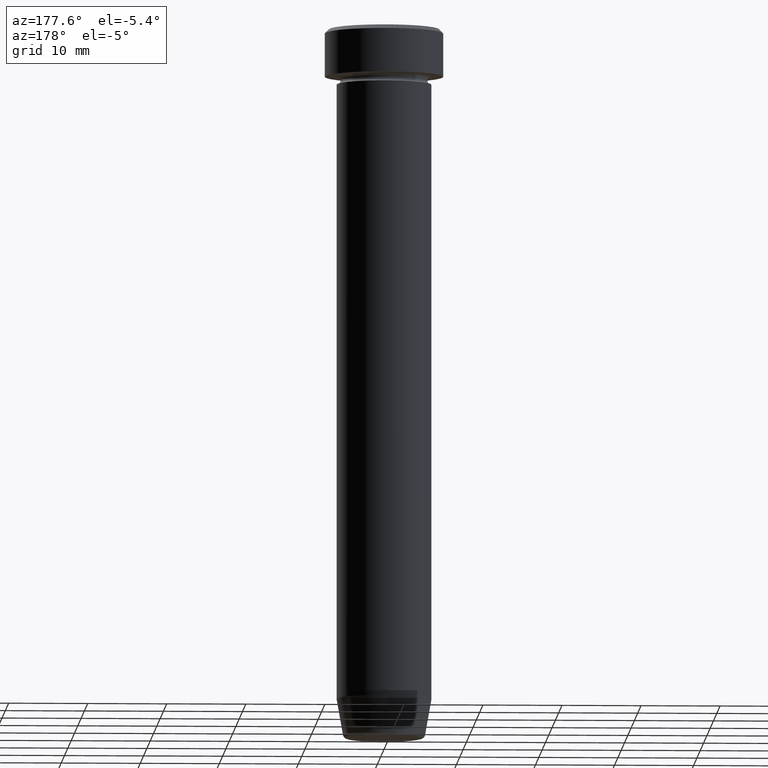
[diagram: clean part render]
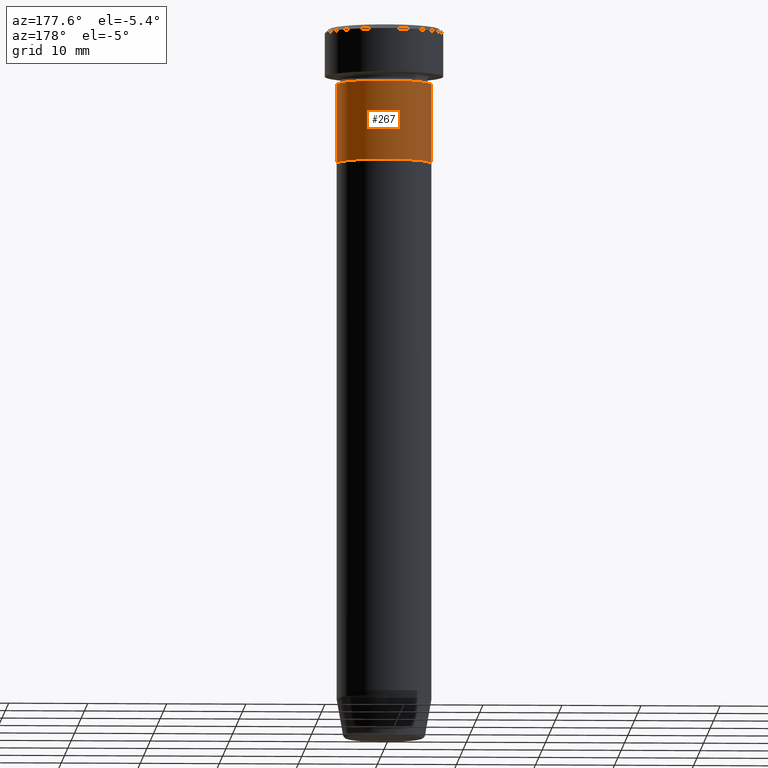
[diagram: same view with one face highlighted and labeled with its STEP entity id]
A machine part, auxiliary view. The second image highlights one B-rep face of the part: STEP entity #267.
In plain terms, the highlighted cylindrical surface (partial cylindrical patch) has radius 6 mm, axis along (-0, -0, 1).
Its self-contained STEP definition (entity closure, byte-faithful):
#2 = DIRECTION ( 'NONE',  ( 1.000000000000000000, 0.000000000000000000, 0.000000000000000000 ) ) ;
#8 = AXIS2_PLACEMENT_3D ( 'NONE', #151, #47, #2 ) ;
#38 = DIRECTION ( 'NONE',  ( -0.000000000000000000, -0.000000000000000000, 1.000000000000000000 ) ) ;
#41 = EDGE_CURVE ( 'NONE', #50, #438, #259, .T. ) ;
#47 = DIRECTION ( 'NONE',  ( -0.000000000000000000, -0.000000000000000000, 1.000000000000000000 ) ) ;
#50 = VERTEX_POINT ( 'NONE', #527 ) ;
#55 = EDGE_LOOP ( 'NONE', ( #126, #457, #197, #332 ) ) ;
#62 = DIRECTION ( 'NONE',  ( -0.000000000000000000, -0.000000000000000000, 1.000000000000000000 ) ) ;
#64 = DIRECTION ( 'NONE',  ( -0.000000000000000000, -0.000000000000000000, 1.000000000000000000 ) ) ;
#81 = CARTESIAN_POINT ( 'NONE',  ( -6.000000000000000000, 7.347880794884119736E-16, 0.000000000000000000 ) ) ;
#105 = CARTESIAN_POINT ( 'NONE',  ( -6.000000000000000000, 7.347880794884119736E-16, -17.00000000000000000 ) ) ;
#122 = DIRECTION ( 'NONE',  ( -0.000000000000000000, -0.000000000000000000, 1.000000000000000000 ) ) ;
#126 = ORIENTED_EDGE ( 'NONE', *, *, #409, .T. ) ;
#151 = CARTESIAN_POINT ( 'NONE',  ( 0.000000000000000000, 0.000000000000000000, 0.000000000000000000 ) ) ;
#159 = DIRECTION ( 'NONE',  ( 1.000000000000000000, 0.000000000000000000, 0.000000000000000000 ) ) ;
#161 = CARTESIAN_POINT ( 'NONE',  ( 6.000000000000000000, 0.000000000000000000, -7.000000000000000000 ) ) ;
#166 = CARTESIAN_POINT ( 'NONE',  ( -6.000000000000000000, 7.347880794884119736E-16, -7.000000000000000000 ) ) ;
#176 = LINE ( 'NONE', #81, #286 ) ;
#197 = ORIENTED_EDGE ( 'NONE', *, *, #360, .F. ) ;
#253 = CARTESIAN_POINT ( 'NONE',  ( 6.000000000000000000, 0.000000000000000000, 0.000000000000000000 ) ) ;
#259 = LINE ( 'NONE', #253, #320 ) ;
#267 = ADVANCED_FACE ( 'NONE', ( #294 ), #429, .T. ) ;
#276 = CIRCLE ( 'NONE', #313, 6.000000000000000000 ) ;
#286 = VECTOR ( 'NONE', #38, 1000.000000000000000 ) ;
#291 = VERTEX_POINT ( 'NONE', #105 ) ;
#294 = FACE_OUTER_BOUND ( 'NONE', #55, .T. ) ;
#302 = AXIS2_PLACEMENT_3D ( 'NONE', #401, #122, #405 ) ;
#313 = AXIS2_PLACEMENT_3D ( 'NONE', #381, #64, #159 ) ;
#320 = VECTOR ( 'NONE', #62, 1000.000000000000000 ) ;
#332 = ORIENTED_EDGE ( 'NONE', *, *, #41, .F. ) ;
#360 = EDGE_CURVE ( 'NONE', #438, #428, #276, .T. ) ;
#381 = CARTESIAN_POINT ( 'NONE',  ( 0.000000000000000000, 0.000000000000000000, -7.000000000000000000 ) ) ;
#401 = CARTESIAN_POINT ( 'NONE',  ( 0.000000000000000000, 0.000000000000000000, -17.00000000000000000 ) ) ;
#405 = DIRECTION ( 'NONE',  ( 1.000000000000000000, 0.000000000000000000, 0.000000000000000000 ) ) ;
#409 = EDGE_CURVE ( 'NONE', #50, #291, #497, .T. ) ;
#428 = VERTEX_POINT ( 'NONE', #166 ) ;
#429 = CYLINDRICAL_SURFACE ( 'NONE', #8, 6.000000000000000000 ) ;
#438 = VERTEX_POINT ( 'NONE', #161 ) ;
#439 = EDGE_CURVE ( 'NONE', #291, #428, #176, .T. ) ;
#457 = ORIENTED_EDGE ( 'NONE', *, *, #439, .T. ) ;
#497 = CIRCLE ( 'NONE', #302, 6.000000000000000000 ) ;
#527 = CARTESIAN_POINT ( 'NONE',  ( 6.000000000000000000, 0.000000000000000000, -17.00000000000000000 ) ) ;